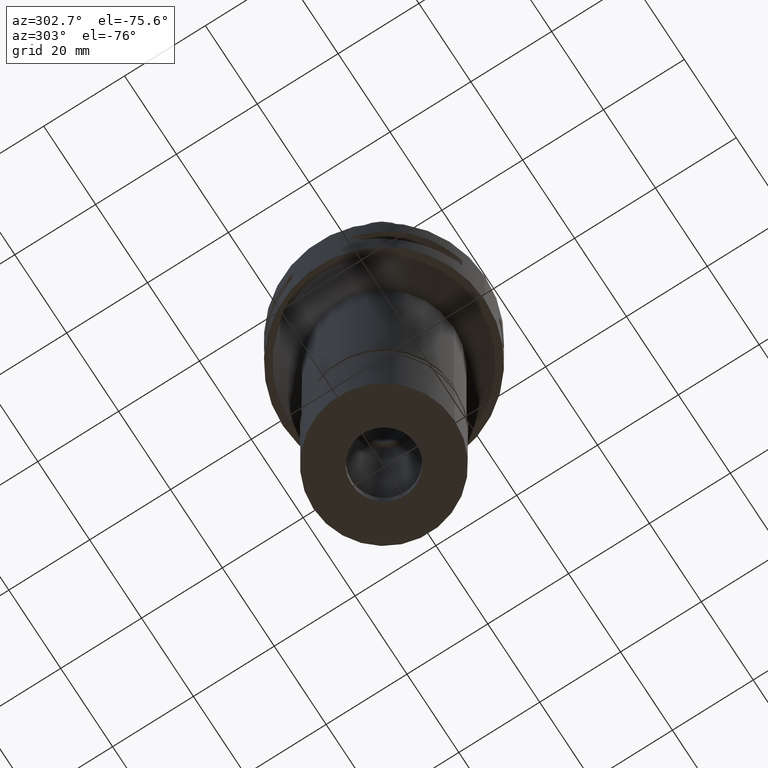
[diagram: clean part render]
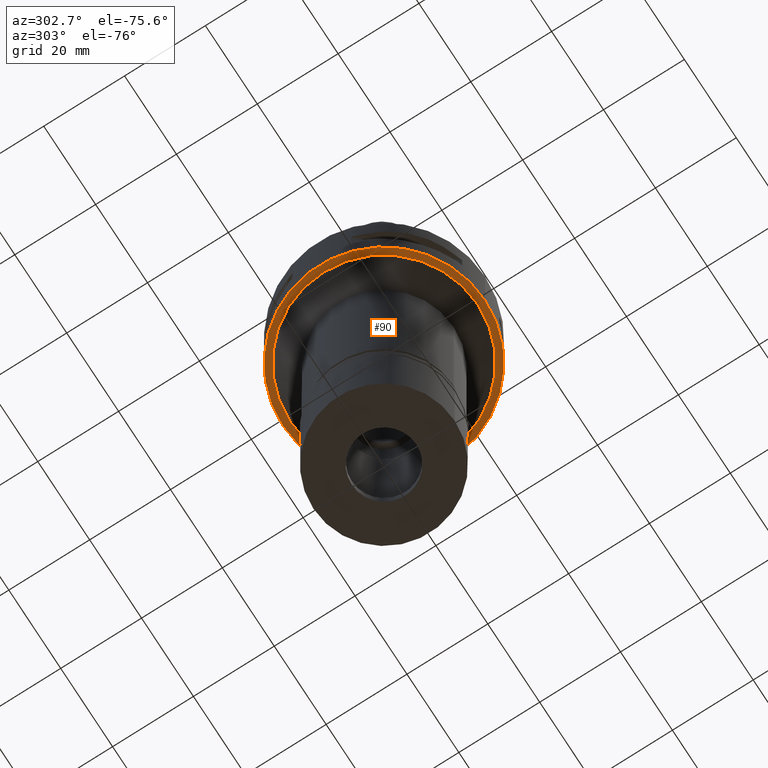
[diagram: same view with one face highlighted and labeled with its STEP entity id]
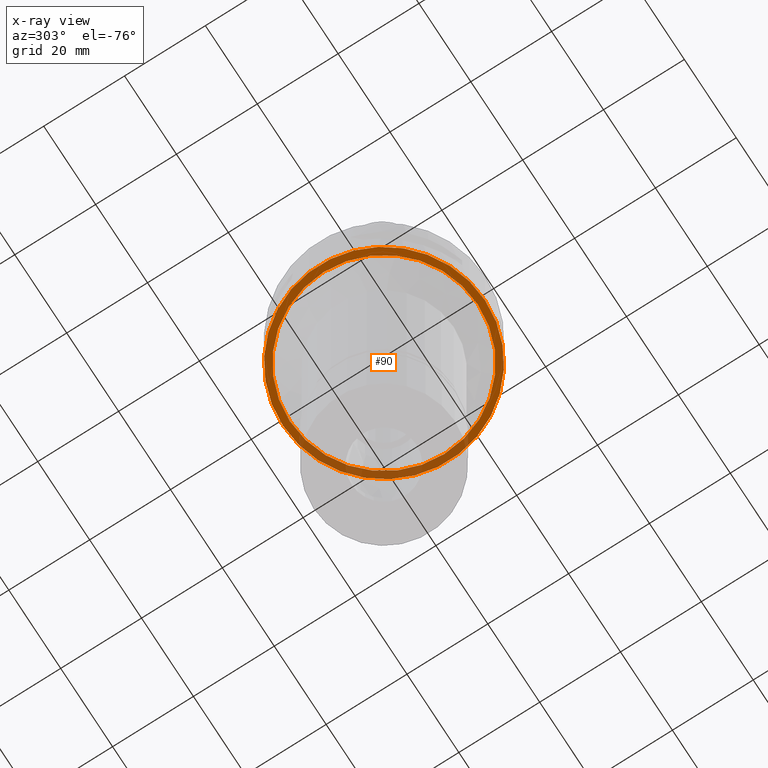
[diagram: x-ray of the same camera — body ghosted, the highlighted face saturated]
A machine part, auxiliary view. The second image highlights one B-rep face of the part: STEP entity #90.
The next image is the same camera in x-ray: the body ghosted, the highlighted face saturated — about 26% of this face is hidden behind the body in this view.
In plain terms, the highlighted planar face has unit normal (0, 0, -1).
Its self-contained STEP definition (entity closure, byte-faithful):
#90 = ADVANCED_FACE ( 'NONE', ( #4680, #1321 ), #4020, .T. ) ;
#446 = EDGE_CURVE ( 'NONE', #2334, #2604, #2817, .T. ) ;
#714 = CIRCLE ( 'NONE', #2995, 25.00000000000000000 ) ;
#717 = CIRCLE ( 'NONE', #4107, 23.25000000000000000 ) ;
#764 = DIRECTION ( 'NONE',  ( 0.0000000000000000000, -1.000000000000000000, 0.0000000000000000000 ) ) ;
#772 = ORIENTED_EDGE ( 'NONE', *, *, #446, .F. ) ;
#828 = CARTESIAN_POINT ( 'NONE',  ( 0.0000000000000000000, 0.0000000000000000000, -20.00000000000000000 ) ) ;
#906 = CARTESIAN_POINT ( 'NONE',  ( 0.0000000000000000000, 1.282205198706999922E-14, -20.00000000000000000 ) ) ;
#1247 = DIRECTION ( 'NONE',  ( 0.0000000000000000000, 0.0000000000000000000, 1.000000000000000000 ) ) ;
#1321 = FACE_BOUND ( 'NONE', #1954, .T. ) ;
#1623 = DIRECTION ( 'NONE',  ( 0.0000000000000000000, 1.000000000000000000, 0.0000000000000000000 ) ) ;
#1657 = AXIS2_PLACEMENT_3D ( 'NONE', #2812, #1247, #4600 ) ;
#1663 = ORIENTED_EDGE ( 'NONE', *, *, #2285, .F. ) ;
#1928 = CARTESIAN_POINT ( 'NONE',  ( 0.0000000000000000000, 0.0000000000000000000, -20.00000000000000000 ) ) ;
#1954 = EDGE_LOOP ( 'NONE', ( #2647, #772 ) ) ;
#2097 = VERTEX_POINT ( 'NONE', #2656 ) ;
#2195 = EDGE_LOOP ( 'NONE', ( #1663, #4783 ) ) ;
#2199 = CIRCLE ( 'NONE', #1657, 25.00000000000000000 ) ;
#2263 = AXIS2_PLACEMENT_3D ( 'NONE', #4713, #2883, #4373 ) ;
#2285 = EDGE_CURVE ( 'NONE', #4084, #2097, #714, .T. ) ;
#2334 = VERTEX_POINT ( 'NONE', #4327 ) ;
#2390 = CARTESIAN_POINT ( 'NONE',  ( 0.0000000000000000000, 23.25000000000000000, -20.00000000000000000 ) ) ;
#2493 = DIRECTION ( 'NONE',  ( 0.0000000000000000000, 0.0000000000000000000, -1.000000000000000000 ) ) ;
#2554 = EDGE_CURVE ( 'NONE', #2604, #2334, #717, .T. ) ;
#2573 = DIRECTION ( 'NONE',  ( 0.0000000000000000000, 0.0000000000000000000, -1.000000000000000000 ) ) ;
#2604 = VERTEX_POINT ( 'NONE', #2390 ) ;
#2647 = ORIENTED_EDGE ( 'NONE', *, *, #2554, .F. ) ;
#2656 = CARTESIAN_POINT ( 'NONE',  ( 0.0000000000000000000, -25.00000000000000000, -20.00000000000000000 ) ) ;
#2812 = CARTESIAN_POINT ( 'NONE',  ( 0.0000000000000000000, 1.282205198706999922E-14, -20.00000000000000000 ) ) ;
#2817 = CIRCLE ( 'NONE', #4166, 23.25000000000000000 ) ;
#2883 = DIRECTION ( 'NONE',  ( 0.0000000000000000000, 0.0000000000000000000, -1.000000000000000000 ) ) ;
#2899 = DIRECTION ( 'NONE',  ( 0.0000000000000000000, 1.000000000000000000, 0.0000000000000000000 ) ) ;
#2995 = AXIS2_PLACEMENT_3D ( 'NONE', #906, #3501, #1623 ) ;
#3182 = CARTESIAN_POINT ( 'NONE',  ( 0.0000000000000000000, 25.00000000000000000, -20.00000000000000000 ) ) ;
#3501 = DIRECTION ( 'NONE',  ( 0.0000000000000000000, 0.0000000000000000000, 1.000000000000000000 ) ) ;
#3907 = EDGE_CURVE ( 'NONE', #2097, #4084, #2199, .T. ) ;
#4020 = PLANE ( 'NONE',  #2263 ) ;
#4084 = VERTEX_POINT ( 'NONE', #3182 ) ;
#4107 = AXIS2_PLACEMENT_3D ( 'NONE', #828, #2573, #2899 ) ;
#4166 = AXIS2_PLACEMENT_3D ( 'NONE', #1928, #2493, #764 ) ;
#4327 = CARTESIAN_POINT ( 'NONE',  ( 0.0000000000000000000, -23.25000000000000000, -20.00000000000000000 ) ) ;
#4373 = DIRECTION ( 'NONE',  ( 0.0000000000000000000, -1.000000000000000000, 0.0000000000000000000 ) ) ;
#4600 = DIRECTION ( 'NONE',  ( 0.0000000000000000000, -1.000000000000000000, 0.0000000000000000000 ) ) ;
#4680 = FACE_OUTER_BOUND ( 'NONE', #2195, .T. ) ;
#4713 = CARTESIAN_POINT ( 'NONE',  ( 0.0000000000000000000, 0.0000000000000000000, -20.00000000000000000 ) ) ;
#4783 = ORIENTED_EDGE ( 'NONE', *, *, #3907, .F. ) ;